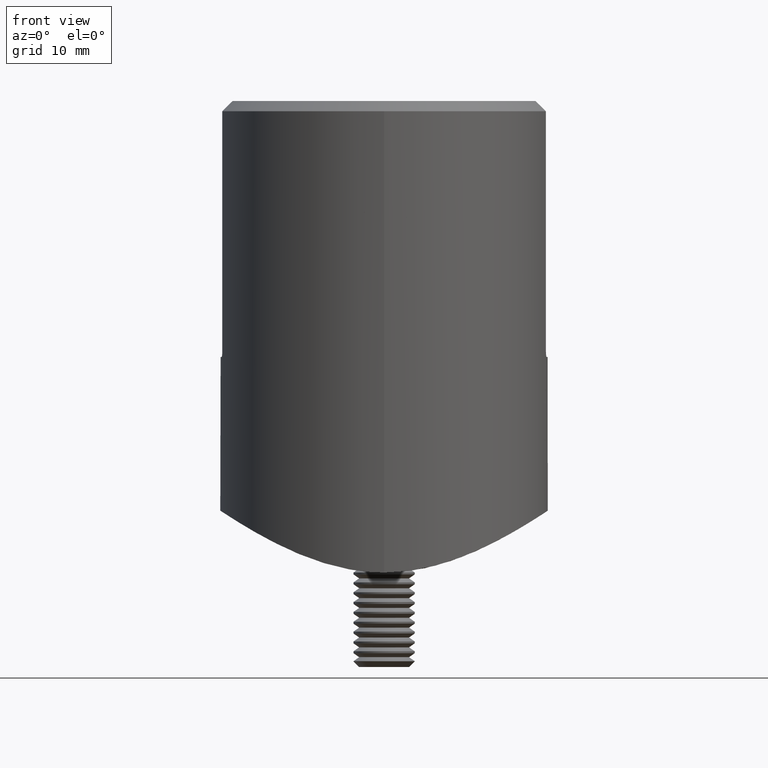
[diagram: clean part render]
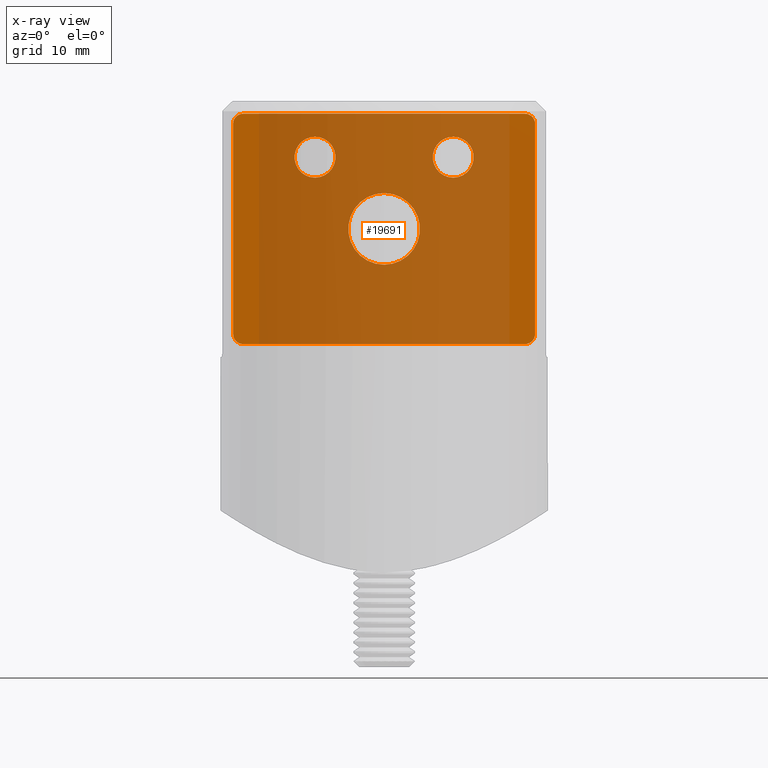
[diagram: x-ray — body ghosted, one internal face saturated and labeled with its STEP entity id]
A machine part, front view, then the same camera in x-ray: the body is ghosted and one INTERNAL B-rep face — a face not visible from any outside direction — is saturated and labeled: STEP entity #19691.
In plain terms, the highlighted planar face has unit normal (0, 1, 0).
Its self-contained STEP definition (entity closure, byte-faithful):
#141 = CARTESIAN_POINT ( 'NONE',  ( 13.74999999999999822, 1.000000000000000000, 11.24999999999999822 ) ) ;
#564 = CARTESIAN_POINT ( 'NONE',  ( 14.75000000000000000, 1.000000000000000000, 10.24999999999999822 ) ) ;
#896 = LINE ( 'NONE', #10962, #16824 ) ;
#1146 = CARTESIAN_POINT ( 'NONE',  ( -13.74999999999999822, 1.000000000000000000, 11.24999999999999822 ) ) ;
#1330 = ORIENTED_EDGE ( 'NONE', *, *, #12315, .F. ) ;
#1357 = CARTESIAN_POINT ( 'NONE',  ( -6.749999999999997335, 1.000000000000000000, 4.999999999999997335 ) ) ;
#1389 = CARTESIAN_POINT ( 'NONE',  ( -14.75000000000000000, 1.000000000000000000, 11.24999999999999822 ) ) ;
#1571 = EDGE_LOOP ( 'NONE', ( #6321, #7864, #8610, #19623, #3163, #5946, #7002, #18665 ) ) ;
#1697 = VERTEX_POINT ( 'NONE', #16825 ) ;
#1899 = DIRECTION ( 'NONE',  ( 0.000000000000000000, 0.000000000000000000, 1.000000000000000000 ) ) ;
#1955 = LINE ( 'NONE', #1389, #6516 ) ;
#2056 = DIRECTION ( 'NONE',  ( -0.000000000000000000, 1.000000000000000000, 0.000000000000000000 ) ) ;
#2395 = CARTESIAN_POINT ( 'NONE',  ( -13.74999999999999822, 1.000000000000000000, 10.24999999999999822 ) ) ;
#2489 = AXIS2_PLACEMENT_3D ( 'NONE', #2661, #11777, #2726 ) ;
#2559 = DIRECTION ( 'NONE',  ( 0.000000000000000000, 0.000000000000000000, -1.000000000000000000 ) ) ;
#2575 = CIRCLE ( 'NONE', #9253, 1.000000000000000888 ) ;
#2607 = CARTESIAN_POINT ( 'NONE',  ( -14.75000000000000000, 1.000000000000000000, 11.24999999999999822 ) ) ;
#2636 = VERTEX_POINT ( 'NONE', #1357 ) ;
#2661 = CARTESIAN_POINT ( 'NONE',  ( -6.749999999999997335, 1.000000000000000000, 6.999999999999997335 ) ) ;
#2726 = DIRECTION ( 'NONE',  ( 0.000000000000000000, 0.000000000000000000, -1.000000000000000000 ) ) ;
#2933 = CARTESIAN_POINT ( 'NONE',  ( 6.750000000000002665, 1.000000000000000000, 4.999999999999995559 ) ) ;
#2985 = CIRCLE ( 'NONE', #19438, 1.000000000000000888 ) ;
#3018 = CIRCLE ( 'NONE', #2489, 2.000000000000000000 ) ;
#3163 = ORIENTED_EDGE ( 'NONE', *, *, #17485, .T. ) ;
#3318 = VECTOR ( 'NONE', #12932, 1000.000000000000000 ) ;
#3471 = DIRECTION ( 'NONE',  ( -0.000000000000000000, 1.000000000000000000, 0.000000000000000000 ) ) ;
#4222 = EDGE_CURVE ( 'NONE', #1697, #6537, #2575, .T. ) ;
#4314 = FACE_OUTER_BOUND ( 'NONE', #1571, .T. ) ;
#4598 = LINE ( 'NONE', #2607, #13730 ) ;
#5790 = EDGE_CURVE ( 'NONE', #17242, #1697, #4598, .T. ) ;
#5815 = DIRECTION ( 'NONE',  ( 1.541976423090496126E-16, -0.000000000000000000, 1.000000000000000000 ) ) ;
#5946 = ORIENTED_EDGE ( 'NONE', *, *, #15817, .T. ) ;
#6321 = ORIENTED_EDGE ( 'NONE', *, *, #9932, .T. ) ;
#6337 = AXIS2_PLACEMENT_3D ( 'NONE', #13364, #11772, #14879 ) ;
#6516 = VECTOR ( 'NONE', #16821, 1000.000000000000000 ) ;
#6537 = VERTEX_POINT ( 'NONE', #1146 ) ;
#6683 = CARTESIAN_POINT ( 'NONE',  ( 13.74999999999999822, 1.000000000000000000, 10.24999999999999822 ) ) ;
#6775 = CARTESIAN_POINT ( 'NONE',  ( -14.75000000000000355, 1.000000000000000000, -10.24999999999998579 ) ) ;
#6807 = DIRECTION ( 'NONE',  ( -0.000000000000000000, 1.000000000000000000, 0.000000000000000000 ) ) ;
#6831 = EDGE_CURVE ( 'NONE', #9586, #9586, #12500, .T. ) ;
#6947 = FACE_BOUND ( 'NONE', #17179, .T. ) ;
#7002 = ORIENTED_EDGE ( 'NONE', *, *, #9402, .T. ) ;
#7360 = ORIENTED_EDGE ( 'NONE', *, *, #6831, .F. ) ;
#7718 = CARTESIAN_POINT ( 'NONE',  ( -13.75000000000000178, 1.000000000000000000, -11.24999999999999112 ) ) ;
#7744 = CARTESIAN_POINT ( 'NONE',  ( -13.75000000000000178, 1.000000000000000000, -10.24999999999999289 ) ) ;
#7804 = DIRECTION ( 'NONE',  ( -0.000000000000000000, 1.000000000000000000, 0.000000000000000000 ) ) ;
#7864 = ORIENTED_EDGE ( 'NONE', *, *, #17138, .T. ) ;
#8592 = LINE ( 'NONE', #15858, #3318 ) ;
#8610 = ORIENTED_EDGE ( 'NONE', *, *, #5790, .T. ) ;
#8648 = PLANE ( 'NONE',  #10505 ) ;
#8877 = FACE_BOUND ( 'NONE', #14655, .T. ) ;
#9141 = CARTESIAN_POINT ( 'NONE',  ( 0.000000000000000000, 1.000000000000000000, 0.000000000000000000 ) ) ;
#9253 = AXIS2_PLACEMENT_3D ( 'NONE', #2395, #6807, #14622 ) ;
#9402 = EDGE_CURVE ( 'NONE', #15555, #14532, #896, .T. ) ;
#9425 = DIRECTION ( 'NONE',  ( -1.541976423090495387E-16, 0.000000000000000000, -1.000000000000000000 ) ) ;
#9576 = EDGE_LOOP ( 'NONE', ( #15325 ) ) ;
#9586 = VERTEX_POINT ( 'NONE', #18230 ) ;
#9932 = EDGE_CURVE ( 'NONE', #14976, #19793, #8592, .T. ) ;
#10505 = AXIS2_PLACEMENT_3D ( 'NONE', #9141, #16746, #2559 ) ;
#10538 = AXIS2_PLACEMENT_3D ( 'NONE', #18694, #11223, #1899 ) ;
#10696 = DIRECTION ( 'NONE',  ( 0.000000000000000000, 0.000000000000000000, -1.000000000000000000 ) ) ;
#10807 = FACE_BOUND ( 'NONE', #9576, .T. ) ;
#10931 = CIRCLE ( 'NONE', #16680, 0.9999999999999991118 ) ;
#10935 = EDGE_CURVE ( 'NONE', #14532, #14976, #11212, .T. ) ;
#10962 = CARTESIAN_POINT ( 'NONE',  ( 14.75000000000000000, 1.000000000000000000, 11.24999999999999822 ) ) ;
#11169 = CARTESIAN_POINT ( 'NONE',  ( 13.74999999999999467, 1.000000000000000000, -11.25000000000000178 ) ) ;
#11212 = CIRCLE ( 'NONE', #6337, 1.000000000000000888 ) ;
#11223 = DIRECTION ( 'NONE',  ( 0.000000000000000000, 1.000000000000000000, 0.000000000000000000 ) ) ;
#11683 = VERTEX_POINT ( 'NONE', #141 ) ;
#11772 = DIRECTION ( 'NONE',  ( -0.000000000000000000, 1.000000000000000000, 0.000000000000000000 ) ) ;
#11777 = DIRECTION ( 'NONE',  ( -0.000000000000000000, 1.000000000000000000, 0.000000000000000000 ) ) ;
#12315 = EDGE_CURVE ( 'NONE', #2636, #2636, #3018, .T. ) ;
#12339 = CIRCLE ( 'NONE', #18771, 2.000000000000000000 ) ;
#12500 = CIRCLE ( 'NONE', #10538, 3.499999999999999556 ) ;
#12932 = DIRECTION ( 'NONE',  ( -1.000000000000000000, -0.000000000000000000, 3.528251137579946599E-16 ) ) ;
#13364 = CARTESIAN_POINT ( 'NONE',  ( 13.74999999999999467, 1.000000000000000000, -10.25000000000000178 ) ) ;
#13730 = VECTOR ( 'NONE', #5815, 1000.000000000000000 ) ;
#13899 = VERTEX_POINT ( 'NONE', #2933 ) ;
#14361 = DIRECTION ( 'NONE',  ( 0.000000000000000000, 0.000000000000000000, -1.000000000000000000 ) ) ;
#14532 = VERTEX_POINT ( 'NONE', #17899 ) ;
#14622 = DIRECTION ( 'NONE',  ( 0.000000000000000000, 0.000000000000000000, -1.000000000000000000 ) ) ;
#14655 = EDGE_LOOP ( 'NONE', ( #7360 ) ) ;
#14879 = DIRECTION ( 'NONE',  ( -1.734723475976805517E-15, 0.000000000000000000, -1.000000000000000000 ) ) ;
#14976 = VERTEX_POINT ( 'NONE', #11169 ) ;
#15325 = ORIENTED_EDGE ( 'NONE', *, *, #15954, .F. ) ;
#15555 = VERTEX_POINT ( 'NONE', #564 ) ;
#15708 = DIRECTION ( 'NONE',  ( 0.000000000000000000, 0.000000000000000000, -1.000000000000000000 ) ) ;
#15817 = EDGE_CURVE ( 'NONE', #11683, #15555, #2985, .T. ) ;
#15858 = CARTESIAN_POINT ( 'NONE',  ( -14.75000000000000355, 1.000000000000000000, -11.24999999999999112 ) ) ;
#15954 = EDGE_CURVE ( 'NONE', #13899, #13899, #12339, .T. ) ;
#16680 = AXIS2_PLACEMENT_3D ( 'NONE', #7744, #7804, #10696 ) ;
#16746 = DIRECTION ( 'NONE',  ( 0.000000000000000000, -1.000000000000000000, 0.000000000000000000 ) ) ;
#16821 = DIRECTION ( 'NONE',  ( 1.000000000000000000, 0.000000000000000000, 0.000000000000000000 ) ) ;
#16824 = VECTOR ( 'NONE', #9425, 1000.000000000000000 ) ;
#16825 = CARTESIAN_POINT ( 'NONE',  ( -14.75000000000000000, 1.000000000000000000, 10.24999999999999822 ) ) ;
#17138 = EDGE_CURVE ( 'NONE', #19793, #17242, #10931, .T. ) ;
#17179 = EDGE_LOOP ( 'NONE', ( #1330 ) ) ;
#17242 = VERTEX_POINT ( 'NONE', #6775 ) ;
#17485 = EDGE_CURVE ( 'NONE', #6537, #11683, #1955, .T. ) ;
#17899 = CARTESIAN_POINT ( 'NONE',  ( 14.74999999999999645, 1.000000000000000000, -10.24999999999999289 ) ) ;
#18230 = CARTESIAN_POINT ( 'NONE',  ( 0.000000000000000000, 1.000000000000000000, 3.499999999999999556 ) ) ;
#18665 = ORIENTED_EDGE ( 'NONE', *, *, #10935, .T. ) ;
#18694 = CARTESIAN_POINT ( 'NONE',  ( 0.000000000000000000, 1.000000000000000000, 0.000000000000000000 ) ) ;
#18771 = AXIS2_PLACEMENT_3D ( 'NONE', #18775, #2056, #15708 ) ;
#18775 = CARTESIAN_POINT ( 'NONE',  ( 6.750000000000002665, 1.000000000000000000, 6.999999999999995559 ) ) ;
#19438 = AXIS2_PLACEMENT_3D ( 'NONE', #6683, #3471, #14361 ) ;
#19623 = ORIENTED_EDGE ( 'NONE', *, *, #4222, .T. ) ;
#19691 = ADVANCED_FACE ( 'NONE', ( #4314, #8877, #6947, #10807 ), #8648, .F. ) ;
#19793 = VERTEX_POINT ( 'NONE', #7718 ) ;